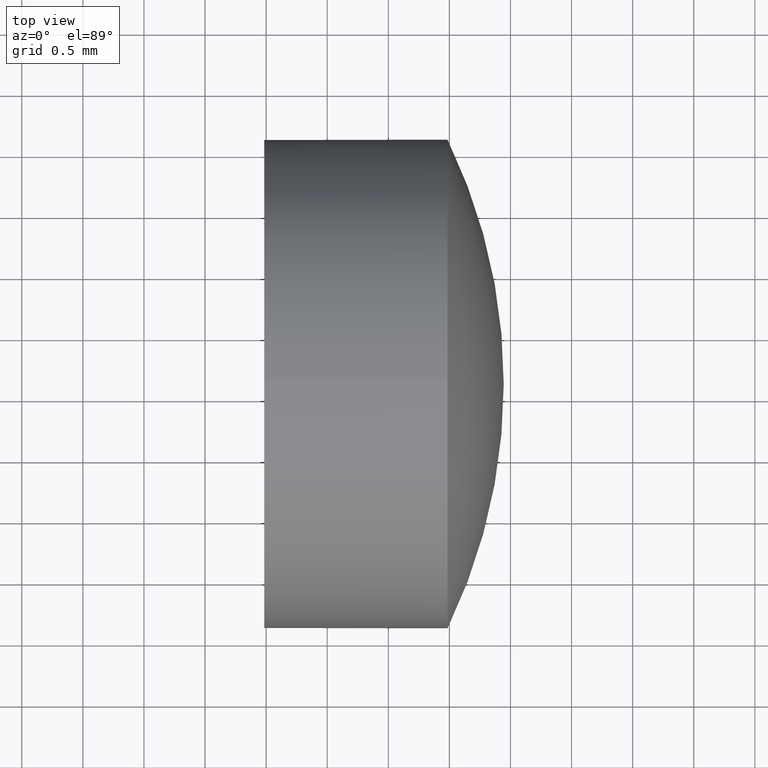
[diagram: clean part render]
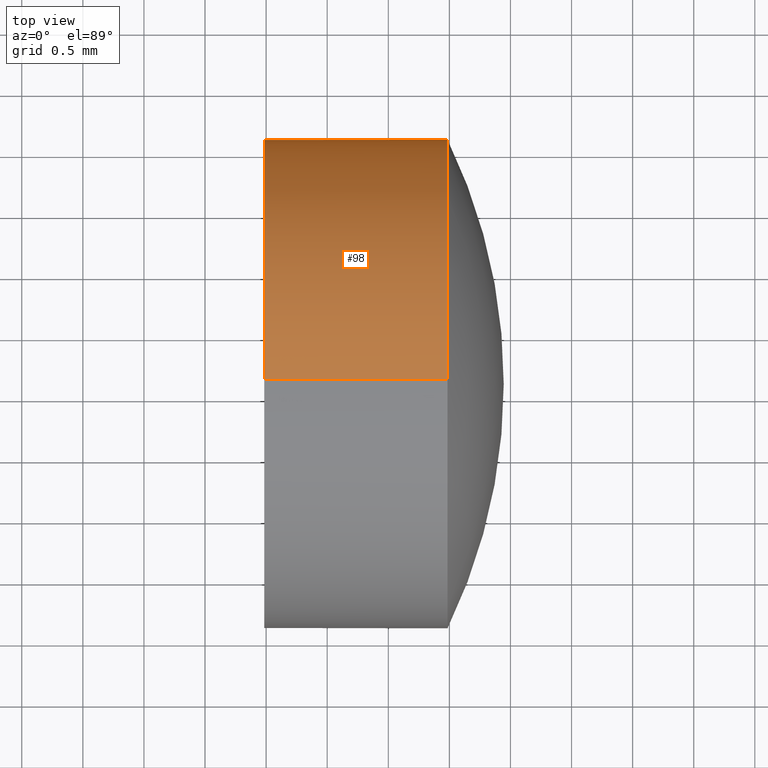
[diagram: same view with one face highlighted and labeled with its STEP entity id]
A machine part, top view. The second image highlights one B-rep face of the part: STEP entity #98.
In plain terms, the highlighted cylindrical surface (partial cylindrical patch) has radius 2 mm, axis along (-1, -0, -0).
Its self-contained STEP definition (entity closure, byte-faithful):
#5 = ORIENTED_EDGE ( 'NONE', *, *, #79, .F. ) ;
#6 = EDGE_CURVE ( 'NONE', #140, #18, #74, .T. ) ;
#9 = VERTEX_POINT ( 'NONE', #179 ) ;
#18 = VERTEX_POINT ( 'NONE', #152 ) ;
#32 = CARTESIAN_POINT ( 'NONE',  ( 416.9849177201196500, 167.1088649650342000, 2.000000000000001800 ) ) ;
#33 = DIRECTION ( 'NONE',  ( -1.000000000000000000, -0.0000000000000000000, -0.0000000000000000000 ) ) ;
#34 = CARTESIAN_POINT ( 'NONE',  ( 416.9849177201196500, 167.1088649650342000, 0.0000000000000000000 ) ) ;
#35 = ORIENTED_EDGE ( 'NONE', *, *, #45, .T. ) ;
#45 = EDGE_CURVE ( 'NONE', #9, #140, #142, .T. ) ;
#47 = EDGE_LOOP ( 'NONE', ( #35, #146, #5, #163, #181 ) ) ;
#48 = CARTESIAN_POINT ( 'NONE',  ( 416.5568110260729800, 167.1088649650342000, -2.000000000000001800 ) ) ;
#51 = VECTOR ( 'NONE', #178, 1000.000000000000000 ) ;
#52 = DIRECTION ( 'NONE',  ( 0.0000000000000000000, 0.0000000000000000000, 1.000000000000000000 ) ) ;
#54 = VECTOR ( 'NONE', #107, 1000.000000000000000 ) ;
#64 = AXIS2_PLACEMENT_3D ( 'NONE', #123, #169, #52 ) ;
#65 = DIRECTION ( 'NONE',  ( -1.000000000000000000, -0.0000000000000000000, -0.0000000000000000000 ) ) ;
#74 = LINE ( 'NONE', #48, #51 ) ;
#78 = VERTEX_POINT ( 'NONE', #32 ) ;
#79 = EDGE_CURVE ( 'NONE', #78, #18, #125, .T. ) ;
#82 = DIRECTION ( 'NONE',  ( 0.0000000000000000000, 0.0000000000000000000, 1.000000000000000000 ) ) ;
#83 = AXIS2_PLACEMENT_3D ( 'NONE', #89, #138, #118 ) ;
#88 = CYLINDRICAL_SURFACE ( 'NONE', #64, 2.000000000000001800 ) ;
#89 = CARTESIAN_POINT ( 'NONE',  ( 418.4849177201196500, 167.1088649650342000, 0.0000000000000000000 ) ) ;
#93 = DIRECTION ( 'NONE',  ( 0.0000000000000000000, 0.0000000000000000000, 1.000000000000000000 ) ) ;
#98 = ADVANCED_FACE ( 'NONE', ( #100 ), #88, .T. ) ;
#99 = AXIS2_PLACEMENT_3D ( 'NONE', #119, #33, #82 ) ;
#100 = FACE_OUTER_BOUND ( 'NONE', #47, .T. ) ;
#106 = CARTESIAN_POINT ( 'NONE',  ( 416.5568110260729800, 167.1088649650342000, 2.000000000000001800 ) ) ;
#107 = DIRECTION ( 'NONE',  ( -1.000000000000000000, -0.0000000000000000000, -0.0000000000000000000 ) ) ;
#114 = VERTEX_POINT ( 'NONE', #141 ) ;
#118 = DIRECTION ( 'NONE',  ( 0.0000000000000000000, 0.0000000000000000000, 1.000000000000000000 ) ) ;
#119 = CARTESIAN_POINT ( 'NONE',  ( 418.4849177201196500, 167.1088649650342000, 0.0000000000000000000 ) ) ;
#121 = EDGE_CURVE ( 'NONE', #114, #9, #132, .T. ) ;
#123 = CARTESIAN_POINT ( 'NONE',  ( 416.5568110260729800, 167.1088649650342000, 0.0000000000000000000 ) ) ;
#125 = CIRCLE ( 'NONE', #174, 2.000000000000001800 ) ;
#132 = CIRCLE ( 'NONE', #99, 2.000000000000001800 ) ;
#138 = DIRECTION ( 'NONE',  ( -1.000000000000000000, -0.0000000000000000000, -0.0000000000000000000 ) ) ;
#140 = VERTEX_POINT ( 'NONE', #160 ) ;
#141 = CARTESIAN_POINT ( 'NONE',  ( 418.4849177201196500, 167.1088649650342000, 2.000000000000001800 ) ) ;
#142 = CIRCLE ( 'NONE', #83, 2.000000000000001800 ) ;
#146 = ORIENTED_EDGE ( 'NONE', *, *, #6, .T. ) ;
#152 = CARTESIAN_POINT ( 'NONE',  ( 416.9849177201196500, 167.1088649650342000, -2.000000000000001800 ) ) ;
#160 = CARTESIAN_POINT ( 'NONE',  ( 418.4849177201196500, 167.1088649650342000, -2.000000000000001800 ) ) ;
#163 = ORIENTED_EDGE ( 'NONE', *, *, #175, .F. ) ;
#169 = DIRECTION ( 'NONE',  ( -1.000000000000000000, -0.0000000000000000000, -0.0000000000000000000 ) ) ;
#170 = LINE ( 'NONE', #106, #54 ) ;
#174 = AXIS2_PLACEMENT_3D ( 'NONE', #34, #65, #93 ) ;
#175 = EDGE_CURVE ( 'NONE', #114, #78, #170, .T. ) ;
#178 = DIRECTION ( 'NONE',  ( -1.000000000000000000, -0.0000000000000000000, -0.0000000000000000000 ) ) ;
#179 = CARTESIAN_POINT ( 'NONE',  ( 418.4849177201196500, 169.1088649650342000, 0.0000000000000000000 ) ) ;
#181 = ORIENTED_EDGE ( 'NONE', *, *, #121, .T. ) ;